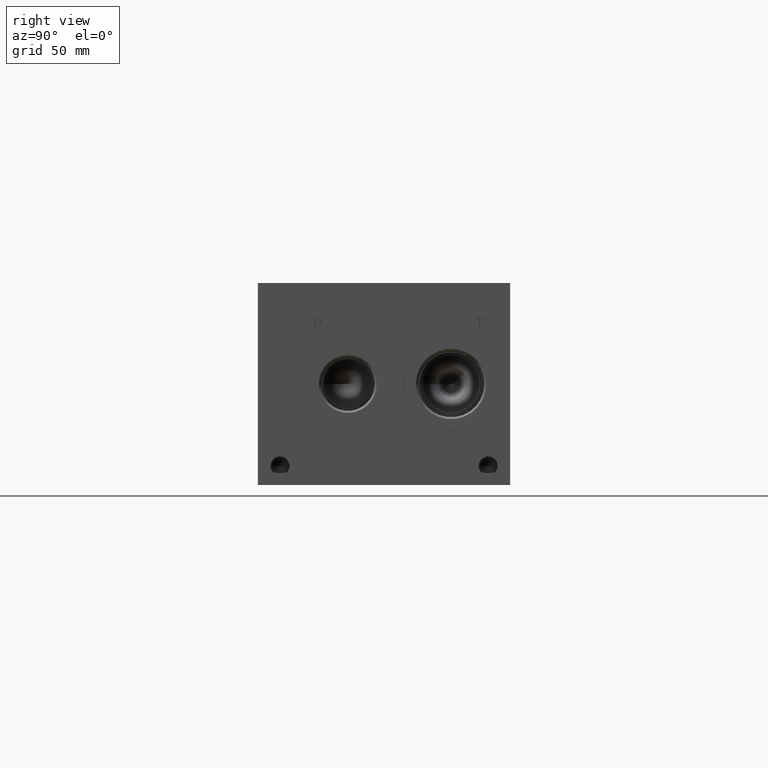
[diagram: clean part render]
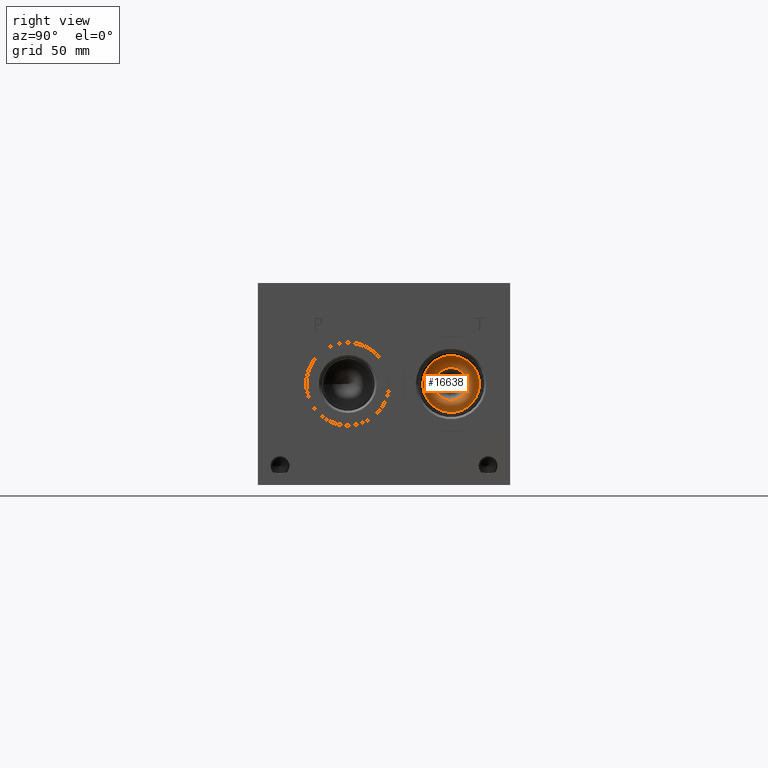
[diagram: same view with one face highlighted and labeled with its STEP entity id]
A machine part, right view. The second image highlights one B-rep face of the part: STEP entity #16638.
In plain terms, the highlighted conical surface has half-angle 60 deg.
Its self-contained STEP definition (entity closure, byte-faithful):
#39=CONICAL_SURFACE('',#17491,7.14375,1.0471975511966);
#595=CIRCLE('',#17492,14.2875);
#596=CIRCLE('',#17493,8.29239320143379);
#597=CIRCLE('',#17494,14.2875);
#2144=FACE_OUTER_BOUND('',#3111,.T.);
#3111=EDGE_LOOP('',(#13905,#13906,#13907,#13908,#13909));
#4674=LINE('',#28157,#6132);
#6132=VECTOR('',#20586,7.14375);
#7552=VERTEX_POINT('',#28153);
#7553=VERTEX_POINT('',#28154);
#7554=VERTEX_POINT('',#28156);
#9769=EDGE_CURVE('',#7552,#7553,#595,.T.);
#9770=EDGE_CURVE('',#7553,#7554,#4674,.T.);
#9771=EDGE_CURVE('',#7554,#7554,#596,.T.);
#9772=EDGE_CURVE('',#7553,#7552,#597,.T.);
#13905=ORIENTED_EDGE('',*,*,#9769,.T.);
#13906=ORIENTED_EDGE('',*,*,#9770,.T.);
#13907=ORIENTED_EDGE('',*,*,#9771,.F.);
#13908=ORIENTED_EDGE('',*,*,#9770,.F.);
#13909=ORIENTED_EDGE('',*,*,#9772,.T.);
#16638=ADVANCED_FACE('',(#2144),#39,.F.);
#17491=AXIS2_PLACEMENT_3D('',#28152,#20582,#20583);
#17492=AXIS2_PLACEMENT_3D('',#28155,#20584,#20585);
#17493=AXIS2_PLACEMENT_3D('',#28158,#20587,#20588);
#17494=AXIS2_PLACEMENT_3D('',#28159,#20589,#20590);
#20582=DIRECTION('center_axis',(1.,0.,0.));
#20583=DIRECTION('ref_axis',(0.,1.,0.));
#20584=DIRECTION('center_axis',(1.,0.,0.));
#20585=DIRECTION('ref_axis',(0.,1.,0.));
#20586=DIRECTION('',(-0.5,0.866025403784438,1.06057523872491E-16));
#20587=DIRECTION('center_axis',(1.,0.,0.));
#20588=DIRECTION('ref_axis',(0.,1.,0.));
#20589=DIRECTION('center_axis',(1.,0.,0.));
#20590=DIRECTION('ref_axis',(0.,1.,0.));
#28152=CARTESIAN_POINT('Origin',(293.428464014477,97.2566,50.8));
#28153=CARTESIAN_POINT('',(297.55291,111.5441,50.8));
#28154=CARTESIAN_POINT('',(297.55291,82.9691,50.8));
#28155=CARTESIAN_POINT('Origin',(297.55291,97.2566,50.8));
#28156=CARTESIAN_POINT('',(294.091633476027,88.9642067985662,50.8));
#28157=CARTESIAN_POINT('',(293.428464014477,90.11285,50.8));
#28158=CARTESIAN_POINT('Origin',(294.091633476027,97.2566,50.8));
#28159=CARTESIAN_POINT('Origin',(297.55291,97.2566,50.8));